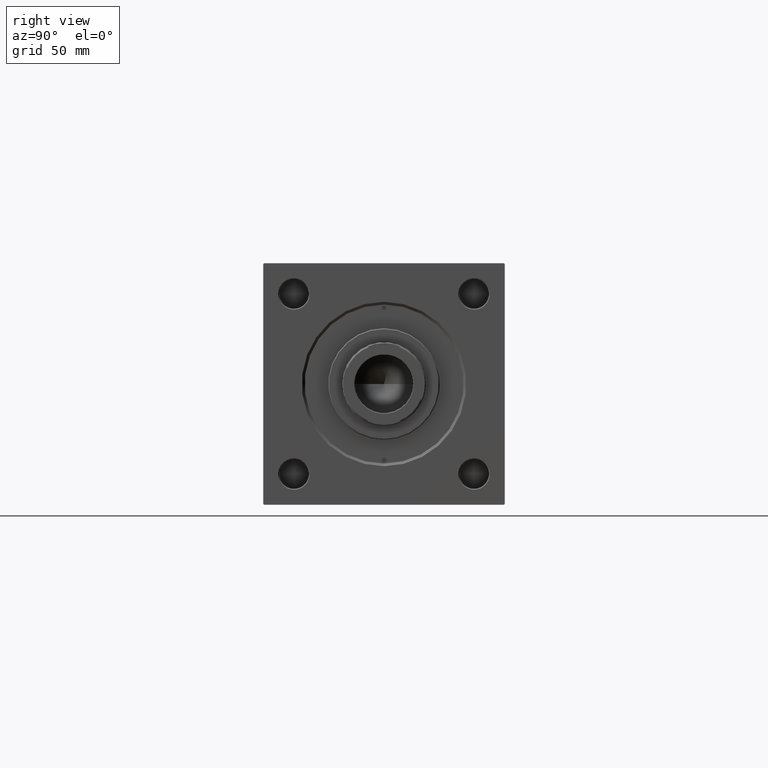
[diagram: clean part render]
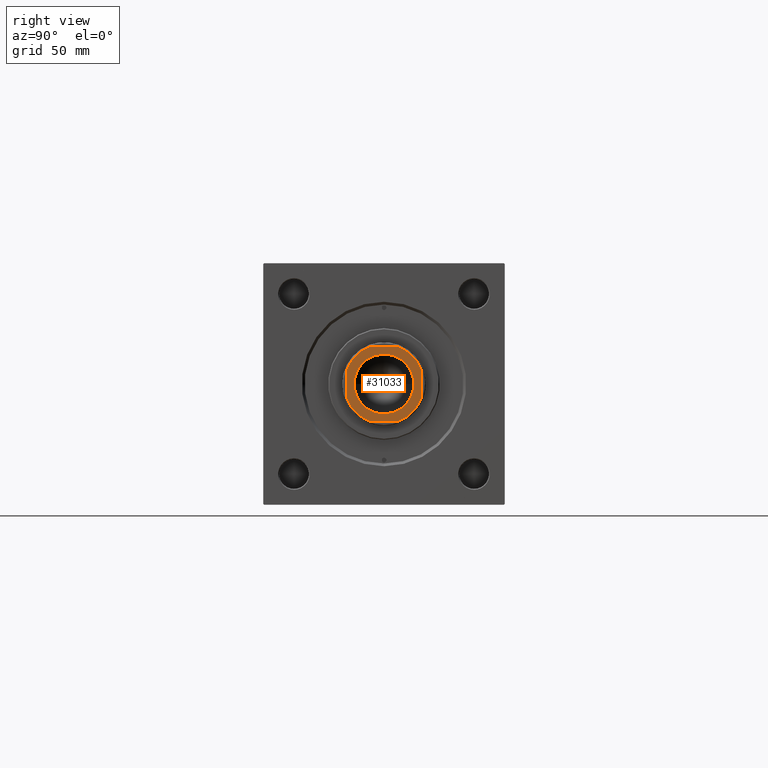
[diagram: same view with one face highlighted and labeled with its STEP entity id]
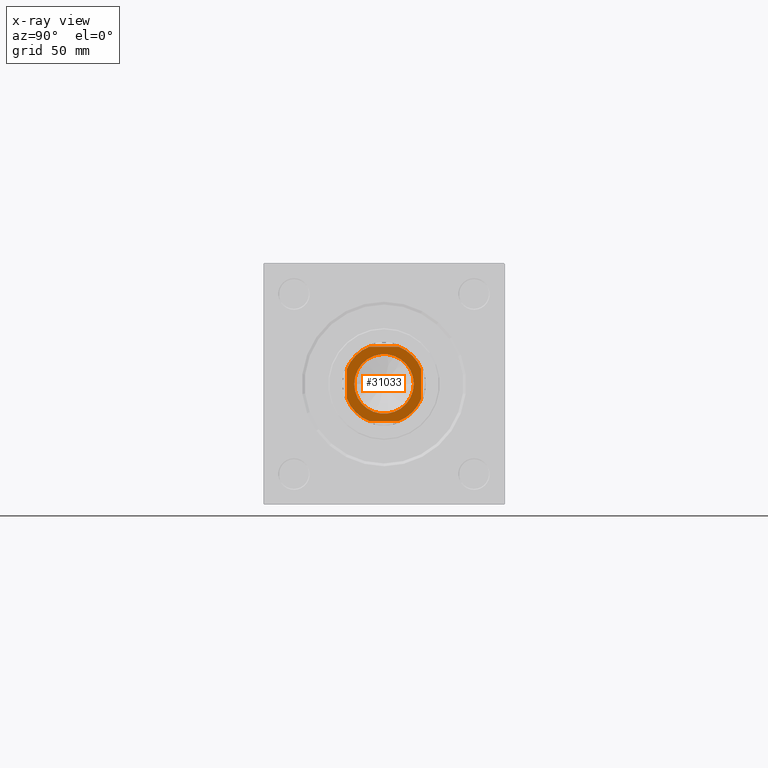
[diagram: x-ray of the same camera — body ghosted, the highlighted face saturated]
A machine part, right view. The second image highlights one B-rep face of the part: STEP entity #31033.
The next image is the same camera in x-ray: the body ghosted, the highlighted face saturated — about 0% of this face is hidden behind the body in this view.
In plain terms, the highlighted planar face has unit normal (1, 0, 0).
Its self-contained STEP definition (entity closure, byte-faithful):
#825 = CARTESIAN_POINT ( 'NONE',  ( 0.000000000000000000, 0.000000000000000000, 283.0000000000000568 ) ) ;
#1623 = CIRCLE ( 'NONE', #48385, 21.50000000000006040 ) ;
#1808 = CARTESIAN_POINT ( 'NONE',  ( -20.00000000000000355, 20.00000000000000000, 283.0000000000000568 ) ) ;
#2080 = DIRECTION ( 'NONE',  ( 0.000000000000000000, -0.000000000000000000, -1.000000000000000000 ) ) ;
#3096 = DIRECTION ( 'NONE',  ( 1.000000000000000000, 0.000000000000000000, 0.000000000000000000 ) ) ;
#3225 = DIRECTION ( 'NONE',  ( -0.000000000000000000, 0.000000000000000000, 1.000000000000000000 ) ) ;
#5073 = VECTOR ( 'NONE', #25681, 1000.000000000000000 ) ;
#6107 = LINE ( 'NONE', #30248, #7938 ) ;
#6225 = CARTESIAN_POINT ( 'NONE',  ( 0.000000000000000000, 0.000000000000000000, 283.0000000000000568 ) ) ;
#6441 = DIRECTION ( 'NONE',  ( -1.734723475976807094E-16, 1.000000000000000000, -0.000000000000000000 ) ) ;
#7068 = AXIS2_PLACEMENT_3D ( 'NONE', #17789, #41671, #40653 ) ;
#7938 = VECTOR ( 'NONE', #49779, 1000.000000000000000 ) ;
#8917 = CARTESIAN_POINT ( 'NONE',  ( -7.889866919029913106, -20.00000000000000000, 283.0000000000000568 ) ) ;
#9057 = DIRECTION ( 'NONE',  ( 1.000000000000000000, 0.000000000000000000, 0.000000000000000000 ) ) ;
#9580 = DIRECTION ( 'NONE',  ( -0.000000000000000000, 0.000000000000000000, 1.000000000000000000 ) ) ;
#9587 = CARTESIAN_POINT ( 'NONE',  ( -16.04999999999997939, 1.965558112631499443E-15, 283.0000000000000568 ) ) ;
#10287 = VERTEX_POINT ( 'NONE', #32744 ) ;
#11711 = CARTESIAN_POINT ( 'NONE',  ( -7.889866919029913106, 20.00000000000000000, 283.0000000000000568 ) ) ;
#13255 = ORIENTED_EDGE ( 'NONE', *, *, #33723, .T. ) ;
#13490 = VERTEX_POINT ( 'NONE', #8917 ) ;
#14456 = DIRECTION ( 'NONE',  ( -0.000000000000000000, 0.000000000000000000, 1.000000000000000000 ) ) ;
#14849 = CARTESIAN_POINT ( 'NONE',  ( 0.000000000000000000, 0.000000000000000000, 283.0000000000000568 ) ) ;
#14869 = EDGE_LOOP ( 'NONE', ( #45647, #24263 ) ) ;
#16034 = CARTESIAN_POINT ( 'NONE',  ( 20.00000000000000000, 7.889866919029916659, 283.0000000000000568 ) ) ;
#16120 = EDGE_LOOP ( 'NONE', ( #20560, #43776, #32653, #13255, #19063, #26855, #46814, #47363 ) ) ;
#16131 = AXIS2_PLACEMENT_3D ( 'NONE', #6225, #14456, #49131 ) ;
#16245 = VERTEX_POINT ( 'NONE', #11711 ) ;
#16332 = EDGE_CURVE ( 'NONE', #24993, #13490, #38939, .T. ) ;
#16798 = AXIS2_PLACEMENT_3D ( 'NONE', #50523, #35086, #42818 ) ;
#17153 = EDGE_CURVE ( 'NONE', #17320, #16245, #29817, .T. ) ;
#17320 = VERTEX_POINT ( 'NONE', #42018 ) ;
#17789 = CARTESIAN_POINT ( 'NONE',  ( 0.000000000000000000, 0.000000000000000000, 283.0000000000000568 ) ) ;
#19063 = ORIENTED_EDGE ( 'NONE', *, *, #20812, .T. ) ;
#20299 = EDGE_CURVE ( 'NONE', #46656, #10287, #37498, .T. ) ;
#20560 = ORIENTED_EDGE ( 'NONE', *, *, #33414, .T. ) ;
#20812 = EDGE_CURVE ( 'NONE', #47267, #24993, #6107, .T. ) ;
#22333 = EDGE_CURVE ( 'NONE', #32968, #33717, #33329, .T. ) ;
#22585 = LINE ( 'NONE', #33376, #5073 ) ;
#23098 = AXIS2_PLACEMENT_3D ( 'NONE', #33676, #2080, #3096 ) ;
#24263 = ORIENTED_EDGE ( 'NONE', *, *, #22333, .T. ) ;
#24639 = CARTESIAN_POINT ( 'NONE',  ( 7.889866919029592474, -20.00000000000000000, 283.0000000000000568 ) ) ;
#24993 = VERTEX_POINT ( 'NONE', #28863 ) ;
#25681 = DIRECTION ( 'NONE',  ( 1.000000000000000000, 0.000000000000000000, 0.000000000000000000 ) ) ;
#26855 = ORIENTED_EDGE ( 'NONE', *, *, #16332, .T. ) ;
#26864 = CARTESIAN_POINT ( 'NONE',  ( -20.00000000000000000, 7.889866919029910441, 283.0000000000000568 ) ) ;
#27416 = DIRECTION ( 'NONE',  ( -0.000000000000000000, 0.000000000000000000, 1.000000000000000000 ) ) ;
#27610 = FACE_OUTER_BOUND ( 'NONE', #16120, .T. ) ;
#28004 = VECTOR ( 'NONE', #6441, 1000.000000000000000 ) ;
#28863 = CARTESIAN_POINT ( 'NONE',  ( -20.00000000000000000, -7.889866919029916659, 283.0000000000000568 ) ) ;
#29662 = CIRCLE ( 'NONE', #23098, 16.04999999999997939 ) ;
#29817 = LINE ( 'NONE', #1808, #35698 ) ;
#30248 = CARTESIAN_POINT ( 'NONE',  ( -20.00000000000000355, 20.00000000000000000, 283.0000000000000568 ) ) ;
#30515 = DIRECTION ( 'NONE',  ( 1.000000000000000000, 0.000000000000000000, 0.000000000000000000 ) ) ;
#31033 = ADVANCED_FACE ( 'NONE', ( #35305, #27610 ), #42295, .T. ) ;
#32279 = EDGE_CURVE ( 'NONE', #46470, #17320, #1623, .T. ) ;
#32653 = ORIENTED_EDGE ( 'NONE', *, *, #17153, .T. ) ;
#32744 = CARTESIAN_POINT ( 'NONE',  ( 20.00000000000000000, -7.889866919029587145, 283.0000000000000568 ) ) ;
#32893 = DIRECTION ( 'NONE',  ( -1.000000000000000000, -0.000000000000000000, -0.000000000000000000 ) ) ;
#32968 = VERTEX_POINT ( 'NONE', #9587 ) ;
#33329 = CIRCLE ( 'NONE', #7068, 16.04999999999997939 ) ;
#33376 = CARTESIAN_POINT ( 'NONE',  ( -19.99999999999999645, -20.00000000000000000, 283.0000000000000568 ) ) ;
#33414 = EDGE_CURVE ( 'NONE', #10287, #46470, #48843, .T. ) ;
#33676 = CARTESIAN_POINT ( 'NONE',  ( 0.000000000000000000, 0.000000000000000000, 283.0000000000000568 ) ) ;
#33717 = VERTEX_POINT ( 'NONE', #50041 ) ;
#33723 = EDGE_CURVE ( 'NONE', #16245, #47267, #47701, .T. ) ;
#34415 = AXIS2_PLACEMENT_3D ( 'NONE', #38429, #3225, #43290 ) ;
#35086 = DIRECTION ( 'NONE',  ( -0.000000000000000000, 0.000000000000000000, 1.000000000000000000 ) ) ;
#35305 = FACE_BOUND ( 'NONE', #14869, .T. ) ;
#35698 = VECTOR ( 'NONE', #32893, 1000.000000000000000 ) ;
#37498 = CIRCLE ( 'NONE', #16131, 21.49999999999994316 ) ;
#38429 = CARTESIAN_POINT ( 'NONE',  ( 0.000000000000000000, 0.000000000000000000, 283.0000000000000568 ) ) ;
#38939 = CIRCLE ( 'NONE', #16798, 21.50000000000006040 ) ;
#40653 = DIRECTION ( 'NONE',  ( 1.000000000000000000, 0.000000000000000000, 0.000000000000000000 ) ) ;
#41657 = CARTESIAN_POINT ( 'NONE',  ( 19.99999999999999645, 20.00000000000000000, 283.0000000000000568 ) ) ;
#41671 = DIRECTION ( 'NONE',  ( 0.000000000000000000, -0.000000000000000000, -1.000000000000000000 ) ) ;
#42018 = CARTESIAN_POINT ( 'NONE',  ( 7.889866919029913106, 20.00000000000000000, 283.0000000000000568 ) ) ;
#42295 = PLANE ( 'NONE',  #34415 ) ;
#42818 = DIRECTION ( 'NONE',  ( 1.000000000000000000, 0.000000000000000000, 0.000000000000000000 ) ) ;
#43190 = EDGE_CURVE ( 'NONE', #33717, #32968, #29662, .T. ) ;
#43290 = DIRECTION ( 'NONE',  ( 1.000000000000000000, 0.000000000000000000, 0.000000000000000000 ) ) ;
#43776 = ORIENTED_EDGE ( 'NONE', *, *, #32279, .T. ) ;
#44362 = EDGE_CURVE ( 'NONE', #13490, #46656, #22585, .T. ) ;
#45647 = ORIENTED_EDGE ( 'NONE', *, *, #43190, .T. ) ;
#46470 = VERTEX_POINT ( 'NONE', #16034 ) ;
#46656 = VERTEX_POINT ( 'NONE', #24639 ) ;
#46814 = ORIENTED_EDGE ( 'NONE', *, *, #44362, .T. ) ;
#47267 = VERTEX_POINT ( 'NONE', #26864 ) ;
#47363 = ORIENTED_EDGE ( 'NONE', *, *, #20299, .T. ) ;
#47701 = CIRCLE ( 'NONE', #48558, 21.50000000000006040 ) ;
#48385 = AXIS2_PLACEMENT_3D ( 'NONE', #825, #9580, #9057 ) ;
#48558 = AXIS2_PLACEMENT_3D ( 'NONE', #14849, #27416, #30515 ) ;
#48843 = LINE ( 'NONE', #41657, #28004 ) ;
#49131 = DIRECTION ( 'NONE',  ( 1.000000000000000000, 0.000000000000000000, 0.000000000000000000 ) ) ;
#49779 = DIRECTION ( 'NONE',  ( 1.734723475976807094E-16, -1.000000000000000000, 0.000000000000000000 ) ) ;
#50041 = CARTESIAN_POINT ( 'NONE',  ( 16.04999999999997939, 0.000000000000000000, 283.0000000000000568 ) ) ;
#50523 = CARTESIAN_POINT ( 'NONE',  ( 0.000000000000000000, 0.000000000000000000, 283.0000000000000568 ) ) ;